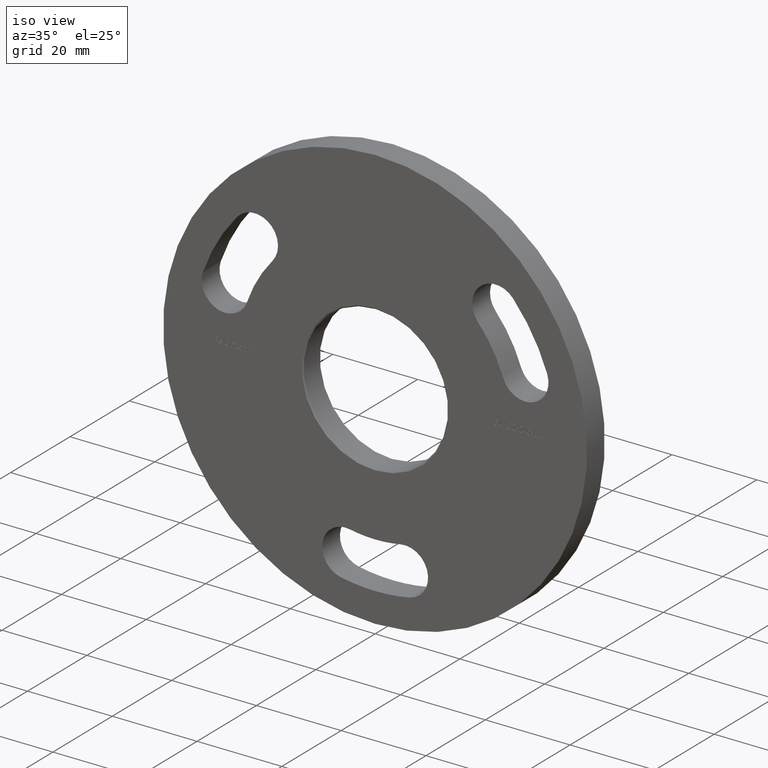
[diagram: clean part render]
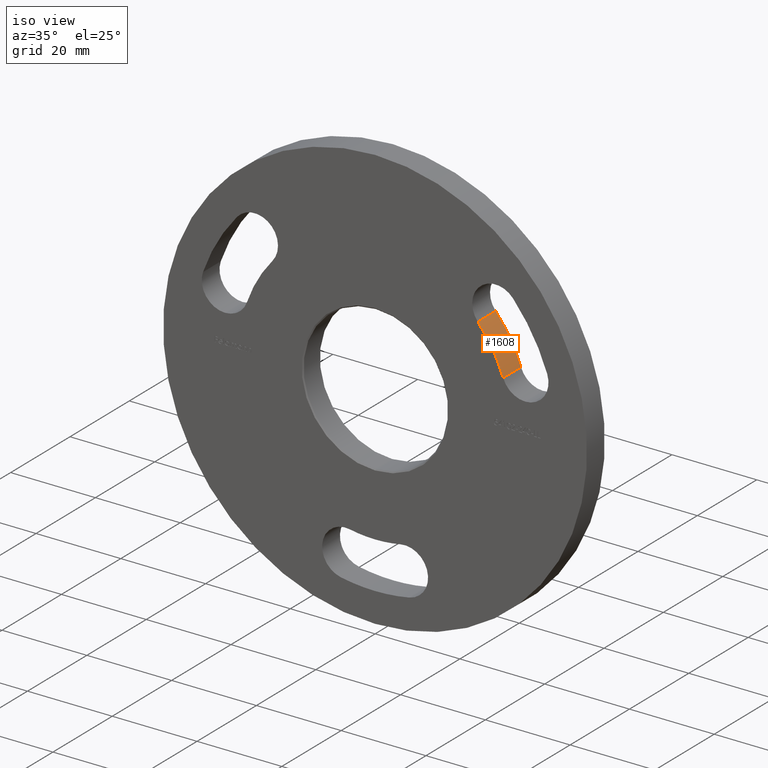
[diagram: same view with one face highlighted and labeled with its STEP entity id]
A machine part, iso view. The second image highlights one B-rep face of the part: STEP entity #1608.
In plain terms, the highlighted cylindrical surface (partial cylindrical patch) has radius 32 mm, axis along (-0, -1, -0).
Its self-contained STEP definition (entity closure, byte-faithful):
#323 = LINE ( 'NONE', #1909, #2361 ) ;
#423 = EDGE_CURVE ( 'NONE', #5946, #12633, #5212, .T. ) ;
#771 = CARTESIAN_POINT ( 'NONE',  ( 30.21238000289840642, 0.000000000000000000, 10.54571451161389994 ) ) ;
#840 = CARTESIAN_POINT ( 'NONE',  ( 24.23904666956506304, 6.000000000000000000, 20.89183133549203220 ) ) ;
#842 = DIRECTION ( 'NONE',  ( -0.000000000000000000, -1.000000000000000000, -0.000000000000000000 ) ) ;
#1010 = CIRCLE ( 'NONE', #7300, 31.99999999999995737 ) ;
#1608 = ADVANCED_FACE ( 'NONE', ( #4893 ), #8878, .T. ) ;
#1909 = CARTESIAN_POINT ( 'NONE',  ( 24.23904666956506304, 6.000000000000000000, 20.89183133549203220 ) ) ;
#1919 = CARTESIAN_POINT ( 'NONE',  ( 0.000000000000000000, 6.000000000000000000, 6.591949208711866959E-14 ) ) ;
#2361 = VECTOR ( 'NONE', #3916, 1000.000000000000000 ) ;
#2574 = VERTEX_POINT ( 'NONE', #9071 ) ;
#3394 = EDGE_CURVE ( 'NONE', #12633, #2574, #323, .T. ) ;
#3916 = DIRECTION ( 'NONE',  ( -0.000000000000000000, -1.000000000000000000, -0.000000000000000000 ) ) ;
#3925 = VECTOR ( 'NONE', #842, 1000.000000000000000 ) ;
#3929 = DIRECTION ( 'NONE',  ( -0.000000000000000000, -1.000000000000000000, -0.000000000000000000 ) ) ;
#4893 = FACE_OUTER_BOUND ( 'NONE', #7833, .T. ) ;
#5145 = DIRECTION ( 'NONE',  ( -0.000000000000000000, -1.000000000000000000, -0.000000000000000000 ) ) ;
#5212 = CIRCLE ( 'NONE', #10162, 31.99999999999995737 ) ;
#5752 = ORIENTED_EDGE ( 'NONE', *, *, #423, .T. ) ;
#5881 = CARTESIAN_POINT ( 'NONE',  ( 30.21238000289840642, 6.000000000000000000, 10.54571451161389994 ) ) ;
#5946 = VERTEX_POINT ( 'NONE', #8039 ) ;
#6580 = LINE ( 'NONE', #5881, #3925 ) ;
#6721 = VERTEX_POINT ( 'NONE', #771 ) ;
#7050 = DIRECTION ( 'NONE',  ( -0.000000000000000000, -1.000000000000000000, -0.000000000000000000 ) ) ;
#7300 = AXIS2_PLACEMENT_3D ( 'NONE', #12207, #5145, #8110 ) ;
#7819 = ORIENTED_EDGE ( 'NONE', *, *, #3394, .T. ) ;
#7833 = EDGE_LOOP ( 'NONE', ( #8578, #11668, #5752, #7819 ) ) ;
#8039 = CARTESIAN_POINT ( 'NONE',  ( 30.21238000289839931, 6.000000000000000000, 10.54571451161389639 ) ) ;
#8110 = DIRECTION ( 'NONE',  ( 0.000000000000000000, 0.000000000000000000, 1.000000000000000000 ) ) ;
#8114 = DIRECTION ( 'NONE',  ( 0.000000000000000000, 0.000000000000000000, -1.000000000000000000 ) ) ;
#8578 = ORIENTED_EDGE ( 'NONE', *, *, #9255, .F. ) ;
#8878 = CYLINDRICAL_SURFACE ( 'NONE', #13079, 31.99999999999995737 ) ;
#9071 = CARTESIAN_POINT ( 'NONE',  ( 24.23904666956506304, 0.000000000000000000, 20.89183133549203220 ) ) ;
#9255 = EDGE_CURVE ( 'NONE', #6721, #2574, #1010, .T. ) ;
#9985 = CARTESIAN_POINT ( 'NONE',  ( 0.000000000000000000, 6.000000000000000000, 6.591949208711866959E-14 ) ) ;
#10162 = AXIS2_PLACEMENT_3D ( 'NONE', #9985, #3929, #11012 ) ;
#11012 = DIRECTION ( 'NONE',  ( 0.000000000000000000, 0.000000000000000000, 1.000000000000000000 ) ) ;
#11059 = EDGE_CURVE ( 'NONE', #5946, #6721, #6580, .T. ) ;
#11668 = ORIENTED_EDGE ( 'NONE', *, *, #11059, .F. ) ;
#12207 = CARTESIAN_POINT ( 'NONE',  ( 0.000000000000000000, 0.000000000000000000, 6.591949208711866959E-14 ) ) ;
#12633 = VERTEX_POINT ( 'NONE', #840 ) ;
#13079 = AXIS2_PLACEMENT_3D ( 'NONE', #1919, #7050, #8114 ) ;